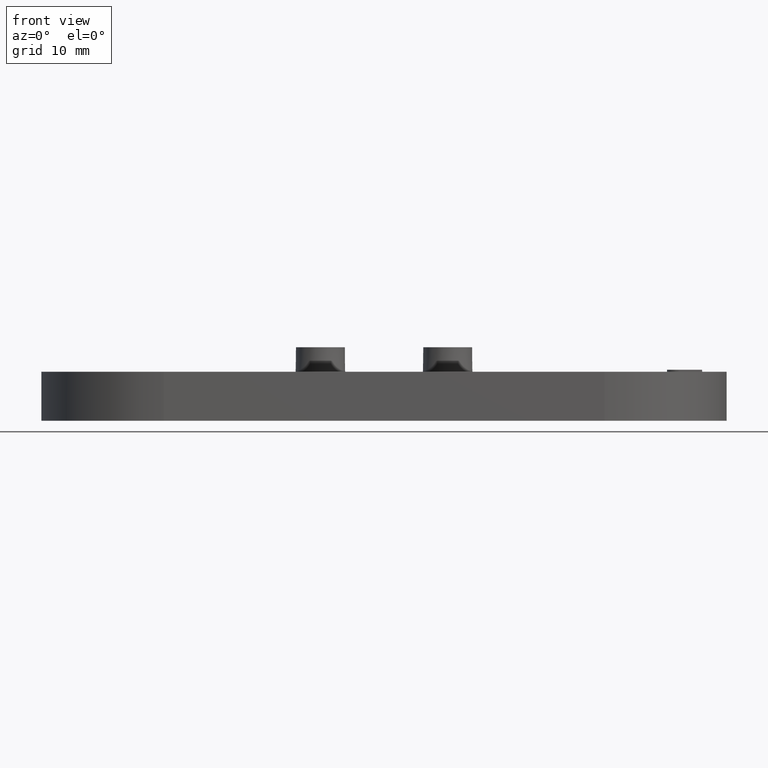
[diagram: clean part render]
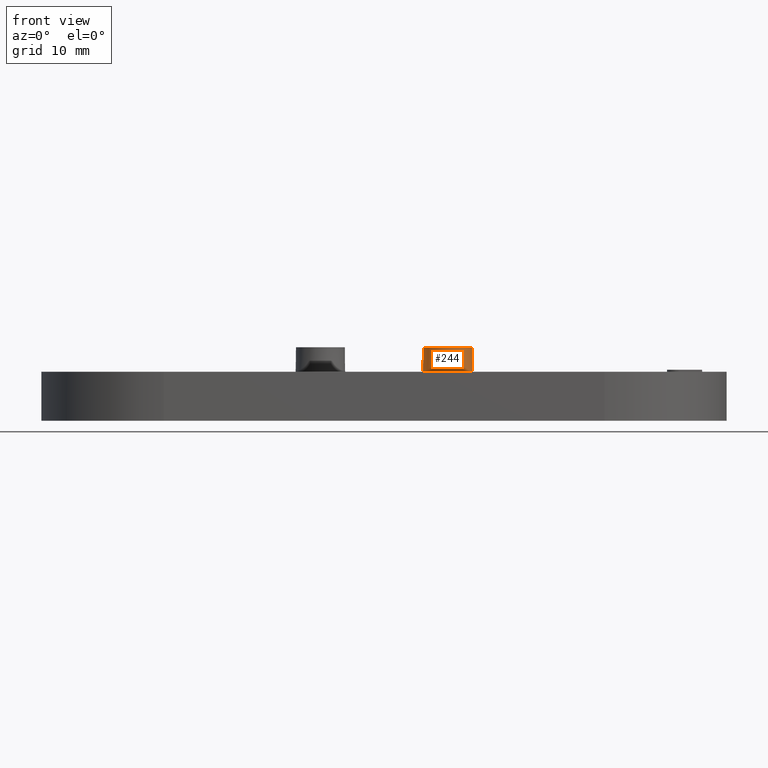
[diagram: same view with one face highlighted and labeled with its STEP entity id]
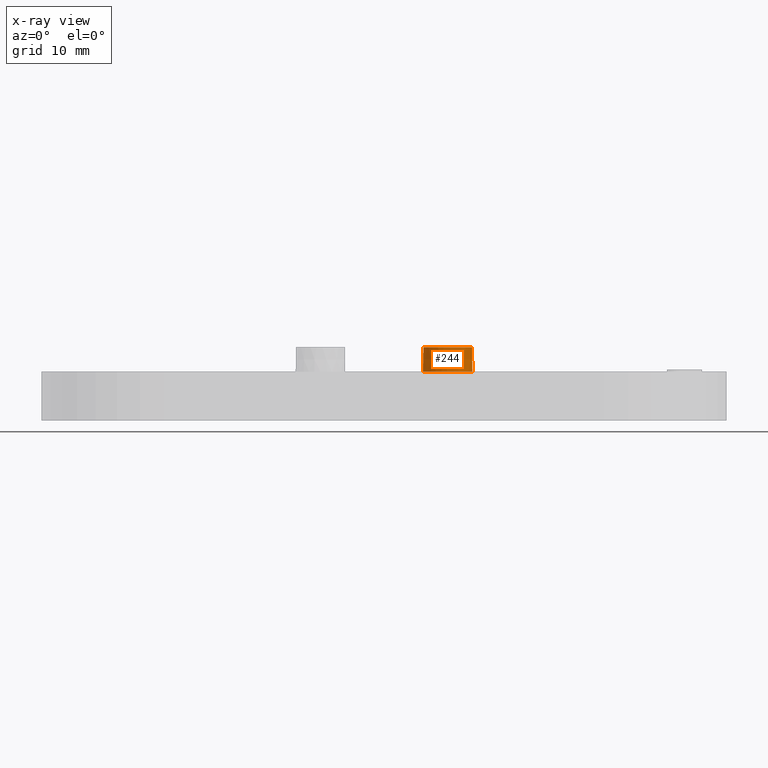
[diagram: x-ray of the same camera — body ghosted, the highlighted face saturated]
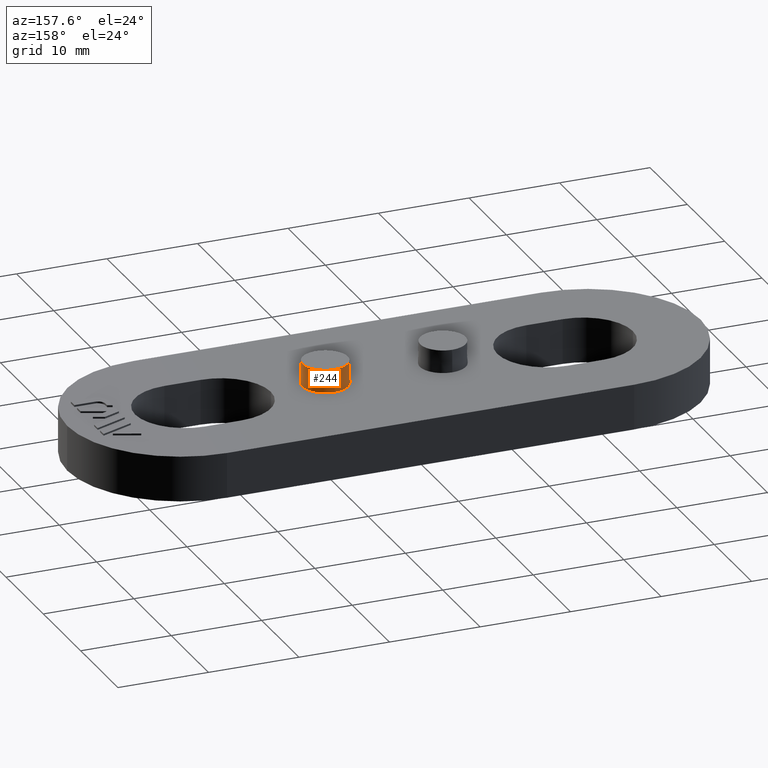
[diagram: same view with one face highlighted and labeled with its STEP entity id]
A machine part, front view. The second image highlights one B-rep face of the part: STEP entity #244.
The next image is the same camera in x-ray: the body ghosted, the highlighted face saturated — about 0% of this face is hidden behind the body in this view.
A second angle (auxiliary view) of the same face is appended — the face is thin or edge-on in the first view.
In plain terms, the highlighted conical surface has half-angle 1 deg.
Its self-contained STEP definition (entity closure, byte-faithful):
#244 = ADVANCED_FACE( '', ( #669, #670 ), #671, .T. );
#669 = FACE_OUTER_BOUND( '', #1145, .T. );
#670 = FACE_BOUND( '', #1146, .T. );
#671 = CONICAL_SURFACE( '', #1147, 2.50000000000000, 0.0174532925199433 );
#1145 = EDGE_LOOP( '', ( #2648 ) );
#1146 = EDGE_LOOP( '', ( #2649 ) );
#1147 = AXIS2_PLACEMENT_3D( '', #2650, #2651, #2652 );
#2648 = ORIENTED_EDGE( '', *, *, #2990, .F. );
#2649 = ORIENTED_EDGE( '', *, *, #3442, .T. );
#2650 = CARTESIAN_POINT( '', ( 6.50000000000000, -0.000165124598848487, 7.50000000000000 ) );
#2651 = DIRECTION( '', ( 0.000000000000000, -6.12303176911189E-017, -1.00000000000000 ) );
#2652 = DIRECTION( '', ( 0.000000000000000, 1.00000000000000, -6.12303176911189E-017 ) );
#2990 = EDGE_CURVE( '', #3554, #3554, #3555, .T. );
#3442 = EDGE_CURVE( '', #4308, #4308, #4309, .T. );
#3554 = VERTEX_POINT( '', #4465 );
#3555 = CIRCLE( '', #4466, 2.54363766232055 );
#4308 = VERTEX_POINT( '', #5610 );
#4309 = CIRCLE( '', #5611, 2.50000000000000 );
#4465 = CARTESIAN_POINT( '', ( 6.50000000000000, 2.54347253772170, 5.00000000000000 ) );
#4466 = AXIS2_PLACEMENT_3D( '', #5792, #5793, #5794 );
#5610 = CARTESIAN_POINT( '', ( 9.00000000000000, -0.000165124598848487, 7.50000000000000 ) );
#5611 = AXIS2_PLACEMENT_3D( '', #6366, #6367, #6368 );
#5792 = CARTESIAN_POINT( '', ( 6.50000000000000, -0.000165124598848487, 5.00000000000000 ) );
#5793 = DIRECTION( '', ( 0.000000000000000, -6.12303176911189E-017, -1.00000000000000 ) );
#5794 = DIRECTION( '', ( 0.000000000000000, 1.00000000000000, -6.12303176911189E-017 ) );
#6366 = CARTESIAN_POINT( '', ( 6.50000000000000, -0.000165124598848487, 7.50000000000000 ) );
#6367 = DIRECTION( '', ( 0.000000000000000, -6.12303176911189E-017, -1.00000000000000 ) );
#6368 = DIRECTION( '', ( 1.00000000000000, 0.000000000000000, 0.000000000000000 ) );